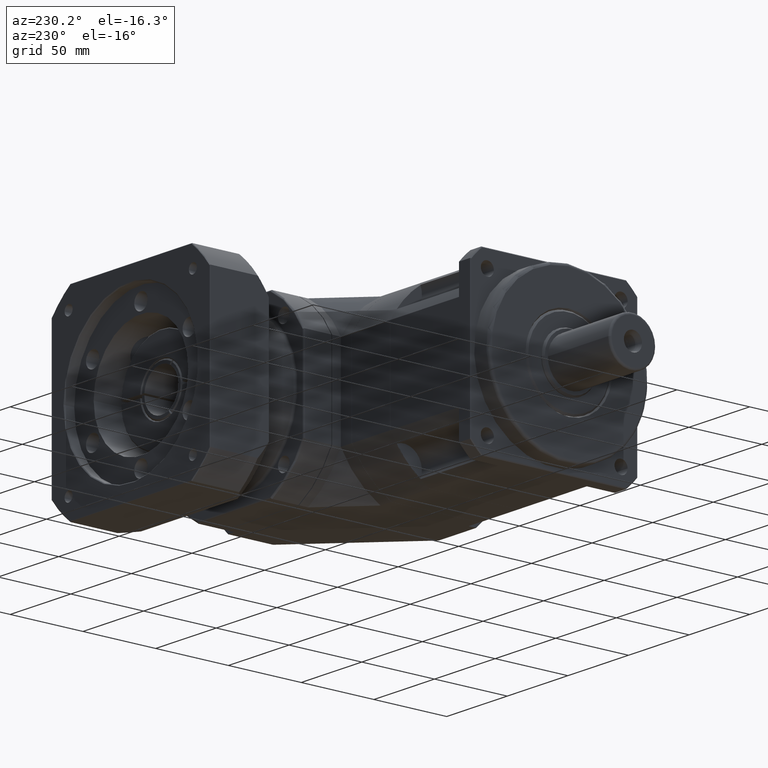
[diagram: clean part render]
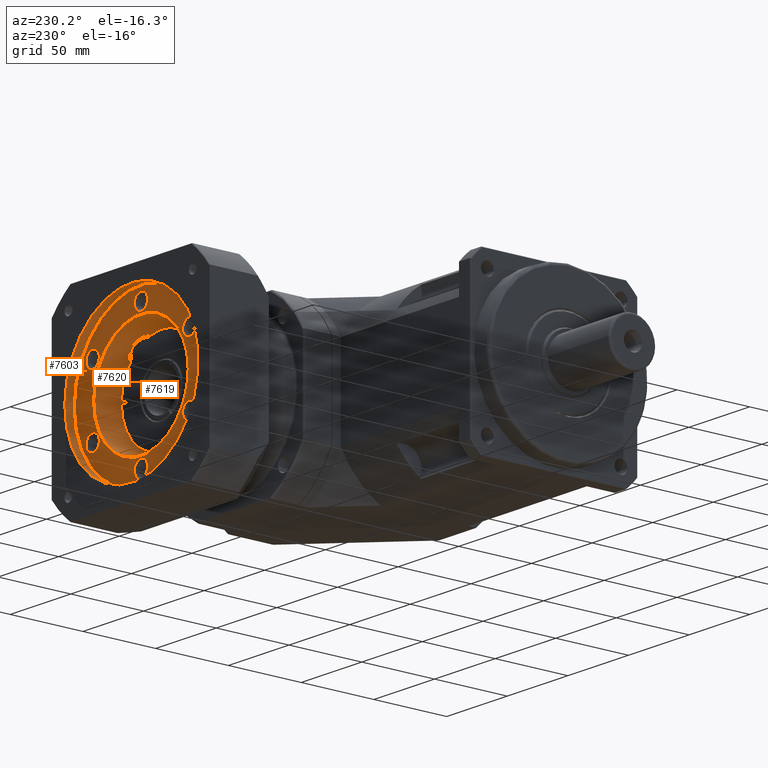
[diagram: same view with one multi-face feature highlighted, each face labeled with its STEP entity id]
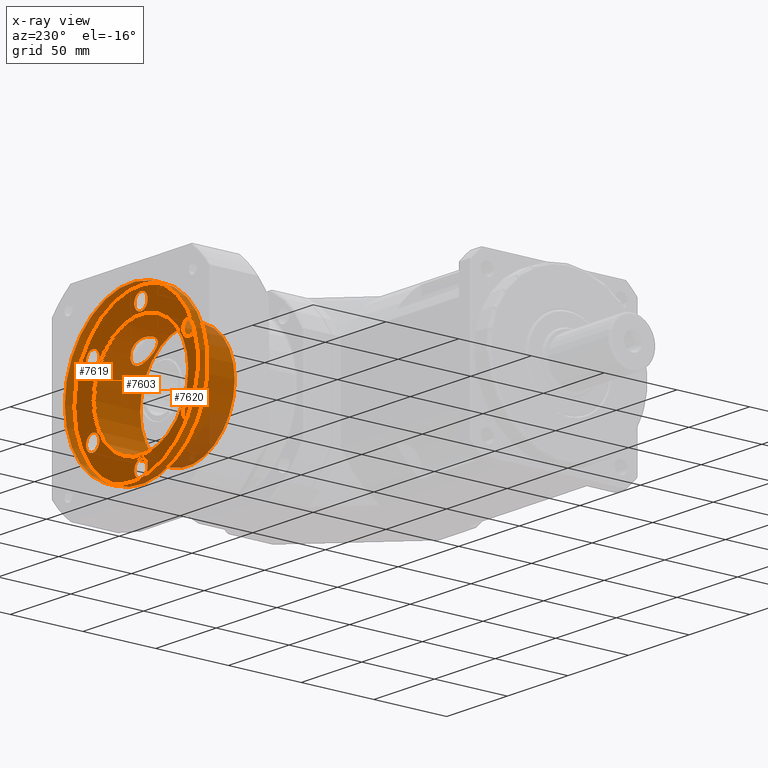
[diagram: x-ray of the same camera — body ghosted, the whole feature saturated]
A machine part, auxiliary view. The highlighted faces form ONE feature: a stepped (counterbored) hole: 2 coaxial cylindrical walls of radii 39 -> 55 mm joined by 1 annular planar shoulder face(s). The faces share edges in the B-rep.
The next image is the same camera in x-ray: the body ghosted and the whole hole feature saturated, so the bore chain is visible through the body.
Their STEP definitions:
[1] entity #7603 (Cylinder):
#1764=FACE_BOUND('',#2654,.T.);
#2060=FACE_OUTER_BOUND('',#2653,.T.);
#2653=EDGE_LOOP('',(#5658));
#2654=EDGE_LOOP('',(#5659));
#3405=CIRCLE('',#8263,55.);
#3406=CIRCLE('',#8265,55.);
#3845=VERTEX_POINT('',#11982);
#3846=VERTEX_POINT('',#11985);
#4574=EDGE_CURVE('',#3845,#3845,#3405,.T.);
#4575=EDGE_CURVE('',#3846,#3846,#3406,.T.);
#5658=ORIENTED_EDGE('',*,*,#4575,.T.);
#5659=ORIENTED_EDGE('',*,*,#4574,.F.);
#7388=CYLINDRICAL_SURFACE('',#8264,55.);
#7603=ADVANCED_FACE('',(#2060,#1764),#7388,.F.);
#8263=AXIS2_PLACEMENT_3D('',#11983,#9446,#9447);
#8264=AXIS2_PLACEMENT_3D('',#11984,#9448,#9449);
#8265=AXIS2_PLACEMENT_3D('',#11986,#9450,#9451);
#9446=DIRECTION('center_axis',(-6.96509818012538E-16,-1.,-3.13024502929046E-15));
#9447=DIRECTION('ref_axis',(-1.,6.96509818012514E-16,7.62214350344634E-15));
#9448=DIRECTION('center_axis',(-6.96509818012538E-16,-1.,-3.13024502929046E-15));
#9449=DIRECTION('ref_axis',(1.,-6.96509818012514E-16,-7.62214350344634E-15));
#9450=DIRECTION('center_axis',(-6.96509818012538E-16,-1.,-3.13024502929046E-15));
#9451=DIRECTION('ref_axis',(-7.55434362407991E-15,3.13024502929047E-15,
-1.));
#11982=CARTESIAN_POINT('',(216.198546431623,123.956835803237,47.6157211164215));
#11983=CARTESIAN_POINT('Origin',(161.198546431623,123.956835803237,47.615721116422));
#11984=CARTESIAN_POINT('Origin',(161.198546431623,120.956835803237,47.6157211164219));
#11985=CARTESIAN_POINT('',(216.198546431623,117.456835803237,47.6157211164215));
#11986=CARTESIAN_POINT('Origin',(161.198546431623,117.456835803237,47.6157211164219));
[2] entity #7620 (Cylinder):
#156=B_SPLINE_CURVE_WITH_KNOTS('',3,(#12023,#12024,#12025,#12026,#12027,
#12028,#12029,#12030,#12031,#12032,#12033,#12034,#12035,#12036,#12037,#12038,
#12039,#12040,#12041,#12042,#12043,#12044,#12045,#12046,#12047,#12048,#12049,
#12050,#12051,#12052,#12053,#12054,#12055,#12056,#12057,#12058,#12059,#12060),
 .UNSPECIFIED.,.T.,.F.,(4,2,2,2,2,2,2,2,2,2,2,2,2,2,2,2,2,2,4),(0.,0.26843728074251,
0.53687456148502,0.874455839385607,1.21203711728619,1.61236587607361,2.01269463486102,
2.29496702470433,2.43610321962599,2.57723941454764,2.71837560946929,2.85951180439095,
3.14178419423426,3.54211295302167,3.94244171180909,4.28002298970967,4.61760426761026,
4.88604154835277,5.15447882909528),.UNSPECIFIED.);
#1783=FACE_BOUND('',#2690,.T.);
#1784=FACE_BOUND('',#2691,.T.);
#2077=FACE_OUTER_BOUND('',#2689,.T.);
#2689=EDGE_LOOP('',(#5694));
#2690=EDGE_LOOP('',(#5695));
#2691=EDGE_LOOP('',(#5696));
#3418=CIRCLE('',#8293,39.);
#3419=CIRCLE('',#8295,39.);
#3857=VERTEX_POINT('',#12022);
#3859=VERTEX_POINT('',#12064);
#3860=VERTEX_POINT('',#12067);
#4586=EDGE_CURVE('',#3857,#3857,#156,.T.);
#4588=EDGE_CURVE('',#3859,#3859,#3418,.T.);
#4589=EDGE_CURVE('',#3860,#3860,#3419,.T.);
#5694=ORIENTED_EDGE('',*,*,#4589,.T.);
#5695=ORIENTED_EDGE('',*,*,#4586,.T.);
#5696=ORIENTED_EDGE('',*,*,#4588,.F.);
#7400=CYLINDRICAL_SURFACE('',#8294,39.);
#7620=ADVANCED_FACE('',(#2077,#1783,#1784),#7400,.F.);
#8293=AXIS2_PLACEMENT_3D('',#12065,#9506,#9507);
#8294=AXIS2_PLACEMENT_3D('',#12066,#9508,#9509);
#8295=AXIS2_PLACEMENT_3D('',#12068,#9510,#9511);
#9506=DIRECTION('center_axis',(-6.96509818012538E-16,-1.,-3.13024502929046E-15));
#9507=DIRECTION('ref_axis',(-7.55434362407991E-15,3.13024502929047E-15,
-1.));
#9508=DIRECTION('center_axis',(-6.96509818012538E-16,-1.,-3.13024502929046E-15));
#9509=DIRECTION('ref_axis',(1.,-6.96509818012514E-16,-7.62214350344634E-15));
#9510=DIRECTION('center_axis',(-6.96509818012538E-16,-1.,-3.13024502929046E-15));
#9511=DIRECTION('ref_axis',(-7.55434362407991E-15,3.13024502929047E-15,
-1.));
#12022=CARTESIAN_POINT('',(178.948546431623,94.4568358032372,82.3423319501901));
#12023=CARTESIAN_POINT('Ctrl Pts',(178.948546431623,94.4568358032372,82.3423319501902));
#12024=CARTESIAN_POINT('Ctrl Pts',(178.948546431623,93.5620448674288,82.3423319501902));
#12025=CARTESIAN_POINT('Ctrl Pts',(179.125230594382,92.6148262277621,82.2536718888853));
#12026=CARTESIAN_POINT('Ctrl Pts',(179.817803481247,90.8916000412632,81.8863632834545));
#12027=CARTESIAN_POINT('Ctrl Pts',(180.332777421476,90.1156725987911,81.6056176412403));
#12028=CARTESIAN_POINT('Ctrl Pts',(181.613154693999,88.7446887007356,80.8561597583901));
#12029=CARTESIAN_POINT('Ctrl Pts',(182.504039345059,88.1380460139734,80.3014988100748));
#12030=CARTESIAN_POINT('Ctrl Pts',(184.365923056111,87.3703718144032,79.009299498363));
#12031=CARTESIAN_POINT('Ctrl Pts',(185.33487909344,87.2068358032372,78.2703077274948));
#12032=CARTESIAN_POINT('Ctrl Pts',(187.222746812789,87.2068358032372,76.6935768798709));
#12033=CARTESIAN_POINT('Ctrl Pts',(188.274234145108,87.4322923727507,75.718549126375));
#12034=CARTESIAN_POINT('Ctrl Pts',(190.172073814464,88.3034811950232,73.7575747544033));
#12035=CARTESIAN_POINT('Ctrl Pts',(191.020401783424,88.945133000832,72.7717299902656));
#12036=CARTESIAN_POINT('Ctrl Pts',(192.169031100319,90.2799804644826,71.3308996246778));
#12037=CARTESIAN_POINT('Ctrl Pts',(192.619865510078,90.9805784926058,70.7242410326221));
#12038=CARTESIAN_POINT('Ctrl Pts',(193.099607147737,92.1926228342383,70.052255416872));
#12039=CARTESIAN_POINT('Ctrl Pts',(193.227823945139,92.6236847819358,69.8676656577097));
#12040=CARTESIAN_POINT('Ctrl Pts',(193.402328181116,93.5205060039377,69.6143595963186));
#12041=CARTESIAN_POINT('Ctrl Pts',(193.448546431623,93.986381820165,69.5460083922418));
#12042=CARTESIAN_POINT('Ctrl Pts',(193.448546431623,94.9272897863094,69.5460083922418));
#12043=CARTESIAN_POINT('Ctrl Pts',(193.402328181116,95.3931656025367,69.6143595963186));
#12044=CARTESIAN_POINT('Ctrl Pts',(193.227823945139,96.2899868245386,69.8676656577098));
#12045=CARTESIAN_POINT('Ctrl Pts',(193.099607147737,96.721048772236,70.052255416872));
#12046=CARTESIAN_POINT('Ctrl Pts',(192.619865510078,97.9330931138686,70.7242410326221));
#12047=CARTESIAN_POINT('Ctrl Pts',(192.169031100319,98.6336911419917,71.3308996246779));
#12048=CARTESIAN_POINT('Ctrl Pts',(191.020401783424,99.9685386056423,72.7717299902656));
#12049=CARTESIAN_POINT('Ctrl Pts',(190.172073814464,100.610190411451,73.7575747544034));
#12050=CARTESIAN_POINT('Ctrl Pts',(188.274234145108,101.481379233724,75.718549126375));
#12051=CARTESIAN_POINT('Ctrl Pts',(187.222746812789,101.706835803237,76.6935768798709));
#12052=CARTESIAN_POINT('Ctrl Pts',(185.33487909344,101.706835803237,78.2703077274949));
#12053=CARTESIAN_POINT('Ctrl Pts',(184.365923056111,101.543299792071,79.009299498363));
#12054=CARTESIAN_POINT('Ctrl Pts',(182.504039345059,100.775625592501,80.3014988100748));
#12055=CARTESIAN_POINT('Ctrl Pts',(181.613154693999,100.168982905739,80.8561597583902));
#12056=CARTESIAN_POINT('Ctrl Pts',(180.332777421476,98.7979990076832,81.6056176412403));
#12057=CARTESIAN_POINT('Ctrl Pts',(179.817803481247,98.0220715652111,81.8863632834545));
#12058=CARTESIAN_POINT('Ctrl Pts',(179.125230594382,96.2988453787122,82.2536718888853));
#12059=CARTESIAN_POINT('Ctrl Pts',(178.948546431623,95.3516267390455,82.3423319501902));
#12060=CARTESIAN_POINT('Ctrl Pts',(178.948546431623,94.4568358032372,82.3423319501902));
#12064=CARTESIAN_POINT('',(200.198546431623,117.456835803237,47.6157211164216));
#12065=CARTESIAN_POINT('Origin',(161.198546431623,117.456835803237,47.6157211164219));
#12066=CARTESIAN_POINT('Origin',(161.198546431623,101.456835803237,47.6157211164219));
#12067=CARTESIAN_POINT('',(200.198546431623,85.4568358032372,47.6157211164215));
#12068=CARTESIAN_POINT('Origin',(161.198546431623,85.4568358032373,47.6157211164218));
[3] entity #7619 (Plane):
#1047=PLANE('',#8292);
#1776=FACE_BOUND('',#2682,.T.);
#1777=FACE_BOUND('',#2683,.T.);
#1778=FACE_BOUND('',#2684,.T.);
#1779=FACE_BOUND('',#2685,.T.);
#1780=FACE_BOUND('',#2686,.T.);
#1781=FACE_BOUND('',#2687,.T.);
#1782=FACE_BOUND('',#2688,.T.);
#2076=FACE_OUTER_BOUND('',#2681,.T.);
#2681=EDGE_LOOP('',(#5686));
#2682=EDGE_LOOP('',(#5687));
#2683=EDGE_LOOP('',(#5688));
#2684=EDGE_LOOP('',(#5689));
#2685=EDGE_LOOP('',(#5690));
#2686=EDGE_LOOP('',(#5691));
#2687=EDGE_LOOP('',(#5692));
#2688=EDGE_LOOP('',(#5693));
#3406=CIRCLE('',#8265,55.);
#3411=CIRCLE('',#8279,5.5);
#3412=CIRCLE('',#8281,5.5);
#3413=CIRCLE('',#8283,5.5);
#3414=CIRCLE('',#8285,5.5);
#3415=CIRCLE('',#8287,5.5);
#3416=CIRCLE('',#8289,5.5);
#3418=CIRCLE('',#8293,39.);
#3846=VERTEX_POINT('',#11985);
#3851=VERTEX_POINT('',#12004);
#3852=VERTEX_POINT('',#12007);
#3853=VERTEX_POINT('',#12010);
#3854=VERTEX_POINT('',#12013);
#3855=VERTEX_POINT('',#12016);
#3856=VERTEX_POINT('',#12019);
#3859=VERTEX_POINT('',#12064);
#4575=EDGE_CURVE('',#3846,#3846,#3406,.T.);
#4580=EDGE_CURVE('',#3851,#3851,#3411,.T.);
#4581=EDGE_CURVE('',#3852,#3852,#3412,.T.);
#4582=EDGE_CURVE('',#3853,#3853,#3413,.T.);
#4583=EDGE_CURVE('',#3854,#3854,#3414,.T.);
#4584=EDGE_CURVE('',#3855,#3855,#3415,.T.);
#4585=EDGE_CURVE('',#3856,#3856,#3416,.T.);
#4588=EDGE_CURVE('',#3859,#3859,#3418,.T.);
#5686=ORIENTED_EDGE('',*,*,#4575,.F.);
#5687=ORIENTED_EDGE('',*,*,#4580,.T.);
#5688=ORIENTED_EDGE('',*,*,#4581,.T.);
#5689=ORIENTED_EDGE('',*,*,#4582,.T.);
#5690=ORIENTED_EDGE('',*,*,#4583,.T.);
#5691=ORIENTED_EDGE('',*,*,#4584,.T.);
#5692=ORIENTED_EDGE('',*,*,#4585,.T.);
#5693=ORIENTED_EDGE('',*,*,#4588,.T.);
#7619=ADVANCED_FACE('',(#2076,#1776,#1777,#1778,#1779,#1780,#1781,#1782),
#1047,.F.);
#8265=AXIS2_PLACEMENT_3D('',#11986,#9450,#9451);
#8279=AXIS2_PLACEMENT_3D('',#12005,#9478,#9479);
#8281=AXIS2_PLACEMENT_3D('',#12008,#9482,#9483);
#8283=AXIS2_PLACEMENT_3D('',#12011,#9486,#9487);
#8285=AXIS2_PLACEMENT_3D('',#12014,#9490,#9491);
#8287=AXIS2_PLACEMENT_3D('',#12017,#9494,#9495);
#8289=AXIS2_PLACEMENT_3D('',#12020,#9498,#9499);
#8292=AXIS2_PLACEMENT_3D('',#12063,#9504,#9505);
#8293=AXIS2_PLACEMENT_3D('',#12065,#9506,#9507);
#9450=DIRECTION('center_axis',(-6.96509818012538E-16,-1.,-3.13024502929046E-15));
#9451=DIRECTION('ref_axis',(-7.55434362407991E-15,3.13024502929047E-15,
-1.));
#9478=DIRECTION('center_axis',(-6.96509818012538E-16,-1.,-3.13024502929046E-15));
#9479=DIRECTION('ref_axis',(-0.866025403784435,-9.61927318261118E-16,0.500000000000006));
#9482=DIRECTION('center_axis',(-6.96509818012538E-16,-1.,-3.13024502929046E-15));
#9483=DIRECTION('ref_axis',(-0.866025403784442,2.16831771102935E-15,-0.499999999999994));
#9486=DIRECTION('center_axis',(-6.96509818012538E-16,-1.,-3.13024502929046E-15));
#9487=DIRECTION('ref_axis',(-7.40294957526739E-15,3.13024502929047E-15,
-1.));
#9490=DIRECTION('center_axis',(-6.96509818012538E-16,-1.,-3.13024502929046E-15));
#9491=DIRECTION('ref_axis',(0.866025403784435,9.6192731826112E-16,-0.500000000000006));
#9494=DIRECTION('center_axis',(-6.96509818012538E-16,-1.,-3.13024502929046E-15));
#9495=DIRECTION('ref_axis',(0.866025403784442,-2.16831771102935E-15,0.499999999999994));
#9498=DIRECTION('center_axis',(-6.96509818012538E-16,-1.,-3.13024502929046E-15));
#9499=DIRECTION('ref_axis',(7.55434362407991E-15,-3.13024502929047E-15,
1.));
#9504=DIRECTION('center_axis',(-6.96509818012538E-16,-1.,-3.13024502929046E-15));
#9505=DIRECTION('ref_axis',(-8.5265128291212E-15,2.8421709430404E-15,-1.));
#9506=DIRECTION('center_axis',(-6.96509818012538E-16,-1.,-3.13024502929046E-15));
#9507=DIRECTION('ref_axis',(-7.55434362407991E-15,3.13024502929047E-15,
-1.));
#11985=CARTESIAN_POINT('',(216.198546431623,117.456835803237,47.6157211164215));
#11986=CARTESIAN_POINT('Origin',(161.198546431623,117.456835803237,47.6157211164219));
#12004=CARTESIAN_POINT('',(116.598238136724,117.456835803237,73.3657211164223));
#12005=CARTESIAN_POINT('Origin',(121.361377857539,117.456835803237,70.6157211164222));
#12007=CARTESIAN_POINT('',(116.598238136724,117.456835803237,21.8657211164222));
#12008=CARTESIAN_POINT('Origin',(121.361377857539,117.456835803237,24.6157211164222));
#12010=CARTESIAN_POINT('',(161.198546431623,117.456835803237,-3.88427888357808));
#12011=CARTESIAN_POINT('Origin',(161.198546431623,117.456835803237,1.61572111642193));
#12013=CARTESIAN_POINT('',(205.798854726521,117.456835803237,21.8657211164216));
#12014=CARTESIAN_POINT('Origin',(201.035715005707,117.456835803237,24.6157211164216));
#12016=CARTESIAN_POINT('',(205.798854726522,117.456835803237,73.3657211164216));
#12017=CARTESIAN_POINT('Origin',(201.035715005707,117.456835803237,70.6157211164217));
#12019=CARTESIAN_POINT('',(161.198546431623,117.456835803237,99.115721116422));
#12020=CARTESIAN_POINT('Origin',(161.198546431623,117.456835803237,93.615721116422));
#12063=CARTESIAN_POINT('Origin',(200.198546431623,117.456835803237,47.6157211164216));
#12064=CARTESIAN_POINT('',(200.198546431623,117.456835803237,47.6157211164216));
#12065=CARTESIAN_POINT('Origin',(161.198546431623,117.456835803237,47.6157211164219));